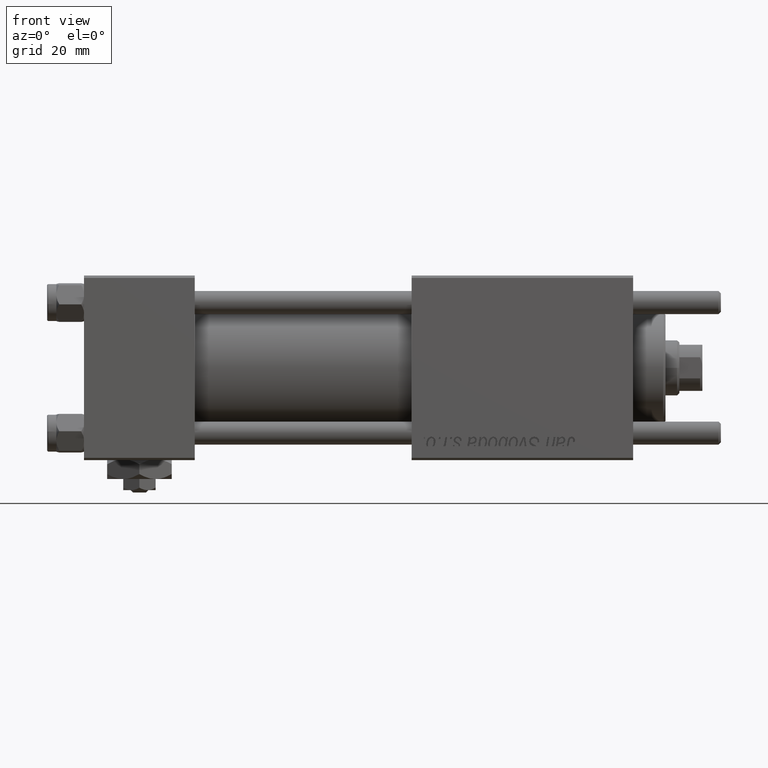
[diagram: clean part render]
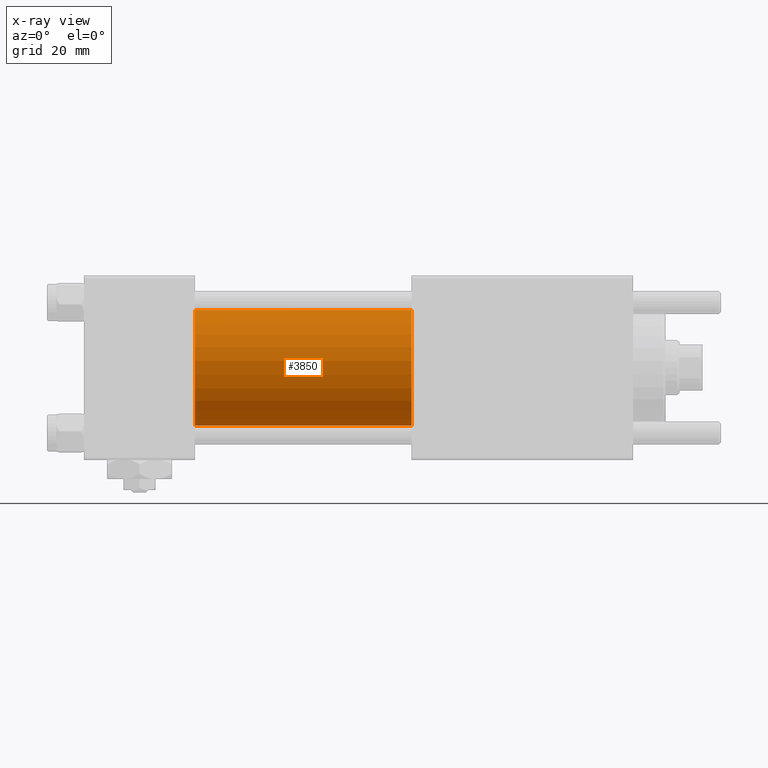
[diagram: x-ray — body ghosted, one internal face saturated and labeled with its STEP entity id]
A machine part, front view, then the same camera in x-ray: the body is ghosted and one INTERNAL B-rep face — a face not visible from any outside direction — is saturated and labeled: STEP entity #3850.
In plain terms, the highlighted cylindrical surface (partial cylindrical patch) has radius 12.5 mm, axis along (-1, -0, -0).
Its self-contained STEP definition (entity closure, byte-faithful):
#1610 = DIRECTION ( 'NONE',  ( 1.000000000000000000, 0.000000000000000000, 0.000000000000000000 ) ) ;
#2270 = VERTEX_POINT ( 'NONE', #55619 ) ;
#2487 = AXIS2_PLACEMENT_3D ( 'NONE', #42197, #1610, #14042 ) ;
#3850 = ADVANCED_FACE ( 'NONE', ( #51456 ), #29802, .F. ) ;
#5693 = ORIENTED_EDGE ( 'NONE', *, *, #32697, .T. ) ;
#5994 = DIRECTION ( 'NONE',  ( -1.000000000000000000, -0.000000000000000000, -0.000000000000000000 ) ) ;
#6753 = VERTEX_POINT ( 'NONE', #53264 ) ;
#10836 = VERTEX_POINT ( 'NONE', #31325 ) ;
#12331 = ORIENTED_EDGE ( 'NONE', *, *, #23085, .F. ) ;
#14042 = DIRECTION ( 'NONE',  ( 0.000000000000000000, 0.000000000000000000, -1.000000000000000000 ) ) ;
#14245 = AXIS2_PLACEMENT_3D ( 'NONE', #19923, #46896, #51632 ) ;
#18988 = CIRCLE ( 'NONE', #14245, 12.49999999999999645 ) ;
#19923 = CARTESIAN_POINT ( 'NONE',  ( 24.00000000000000000, -2.602085213965210642E-15, 0.000000000000000000 ) ) ;
#22374 = CIRCLE ( 'NONE', #2487, 12.49999999999999645 ) ;
#23085 = EDGE_CURVE ( 'NONE', #6753, #2270, #18988, .T. ) ;
#23378 = VECTOR ( 'NONE', #5994, 1000.000000000000000 ) ;
#23913 = VECTOR ( 'NONE', #52880, 1000.000000000000000 ) ;
#24719 = VERTEX_POINT ( 'NONE', #42264 ) ;
#29232 = EDGE_LOOP ( 'NONE', ( #51688, #5693, #12331, #47385 ) ) ;
#29802 = CYLINDRICAL_SURFACE ( 'NONE', #57817, 12.49999999999999645 ) ;
#31325 = CARTESIAN_POINT ( 'NONE',  ( 71.00000000000001421, -1.071276715031019515E-15, -12.49999999999999645 ) ) ;
#32697 = EDGE_CURVE ( 'NONE', #10836, #2270, #34516, .T. ) ;
#34516 = LINE ( 'NONE', #57354, #23913 ) ;
#42139 = LINE ( 'NONE', #55762, #23378 ) ;
#42197 = CARTESIAN_POINT ( 'NONE',  ( 71.00000000000001421, -2.602085213965210642E-15, 0.000000000000000000 ) ) ;
#42264 = CARTESIAN_POINT ( 'NONE',  ( 71.00000000000001421, -2.602085213965210642E-15, 12.49999999999999645 ) ) ;
#42559 = DIRECTION ( 'NONE',  ( 0.000000000000000000, 0.000000000000000000, 1.000000000000000000 ) ) ;
#43427 = DIRECTION ( 'NONE',  ( -1.000000000000000000, -0.000000000000000000, -0.000000000000000000 ) ) ;
#46896 = DIRECTION ( 'NONE',  ( 1.000000000000000000, 0.000000000000000000, 0.000000000000000000 ) ) ;
#47385 = ORIENTED_EDGE ( 'NONE', *, *, #49511, .F. ) ;
#47874 = CARTESIAN_POINT ( 'NONE',  ( 71.00000000000001421, -2.602085213965210642E-15, 0.000000000000000000 ) ) ;
#48407 = EDGE_CURVE ( 'NONE', #24719, #10836, #22374, .T. ) ;
#49511 = EDGE_CURVE ( 'NONE', #24719, #6753, #42139, .T. ) ;
#51456 = FACE_OUTER_BOUND ( 'NONE', #29232, .T. ) ;
#51632 = DIRECTION ( 'NONE',  ( 0.000000000000000000, 0.000000000000000000, -1.000000000000000000 ) ) ;
#51688 = ORIENTED_EDGE ( 'NONE', *, *, #48407, .T. ) ;
#52880 = DIRECTION ( 'NONE',  ( -1.000000000000000000, -0.000000000000000000, -0.000000000000000000 ) ) ;
#53264 = CARTESIAN_POINT ( 'NONE',  ( 24.00000000000000000, -2.602085213965210642E-15, 12.49999999999999645 ) ) ;
#55619 = CARTESIAN_POINT ( 'NONE',  ( 24.00000000000000000, -1.071276715031019515E-15, -12.49999999999999645 ) ) ;
#55762 = CARTESIAN_POINT ( 'NONE',  ( 71.00000000000001421, -2.602085213965210642E-15, 12.49999999999999645 ) ) ;
#57354 = CARTESIAN_POINT ( 'NONE',  ( 71.00000000000001421, -1.071276715031019515E-15, -12.49999999999999645 ) ) ;
#57817 = AXIS2_PLACEMENT_3D ( 'NONE', #47874, #43427, #42559 ) ;